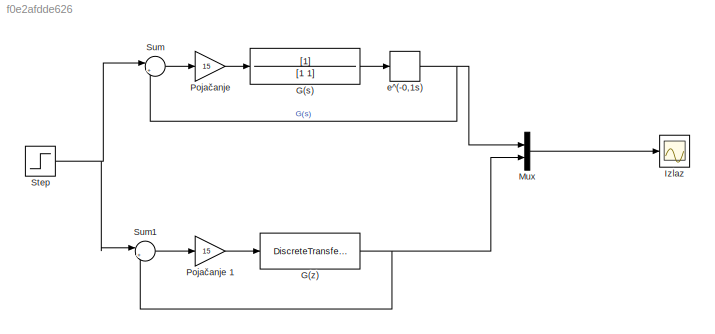
MODEL slx_f0e2afdde626
KIND model
CONFIG AbsTol = auto
CONFIG EnableMultiTasking = off
CONFIG FixedStep = auto
CONFIG MaxStep = auto
CONFIG MinStep = auto
CONFIG RelTol = 1e-3
CONFIG SampleTimeConstraint = Unconstrained
CONFIG Solver = VariableStepAuto
CONFIG SolverName = VariableStepAuto
CONFIG StartTime = 0.0
CONFIG StopTime = 10
BLOCK [TransferFcn] G(s)
  Denominator = [1 1]
BLOCK [DiscreteTransferFcn] G(z)
  Denominator = [1 -0.9324 0 0]
  InputPortMap = u0
  Numerator = [0.0391 0.0285]
  Ports = [1, 1]
  SampleTime = 0.07
BLOCK [Scope] Izlaz
  NumInputPorts = 1
  Ports = [1]
  ScopeSpecificationString = Simulink.scopes.TimeScopeBlockCfg('CurrentConfiguration', extmgr.ConfigurationSet(extmgr.Configuration('Core','General UI',true),extmgr.Configuration('Core','Source UI',true),extmgr.Configuration('Sources','WiredSimulink',true),extmgr.Configuration('Visuals','Time Domain',true,'SerializedDisplays',{struct('MinYLimReal','-417.01697','MaxYLimReal','444.13513','YLabelReal','','MinYLimMag',' 0.00000',...<+1370ch>
BLOCK [Mux] Mux
  DisplayOption = bar
  Inputs = 2
  Ports = [2, 1]
BLOCK [Gain] Pojačanje
  Gain = 15
  OutDataTypeStr = Inherit: Inherit via internal rule
  ParamDataTypeStr = Inherit: Inherit via internal rule
  SaturateOnIntegerOverflow = off
BLOCK [Gain] Pojačanje 1
  Gain = 15
  OutDataTypeStr = Inherit: Inherit via internal rule
  ParamDataTypeStr = Inherit: Inherit via internal rule
  SaturateOnIntegerOverflow = off
BLOCK [Step] Step
  SampleTime = 0
BLOCK [Sum] Sum
  IconShape = round
  InputSameDT = off
  Inputs = |+-
  OutDataTypeStr = Inherit: Inherit via internal rule
  Ports = [2, 1]
  SaturateOnIntegerOverflow = off
BLOCK [Sum] Sum1
  IconShape = round
  InputSameDT = off
  Inputs = |+-
  OutDataTypeStr = Inherit: Inherit via internal rule
  Ports = [2, 1]
  SaturateOnIntegerOverflow = off
BLOCK [TransportDelay] e^(-0,1s)
  DelayTime = 0.1
  Ports = [1, 1]
LINE G(s):1 -> e^(-0,1s):1
NET G(z):1 -> Mux:2, Sum1:2
LINE Mux:1 -> Izlaz:1
LINE Pojačanje 1:1 -> G(z):1
LINE Pojačanje:1 -> G(s):1
NET Step:1 -> Sum1:1, Sum:1
LINE Sum1:1 -> Pojačanje 1:1
LINE Sum:1 -> Pojačanje:1
NET e^(-0,1s):1 -> Mux:1, Sum:2
note: NET lines group one-source signal fan-out (src -> all destinations, sorted); 1:1 wires keep LINE
